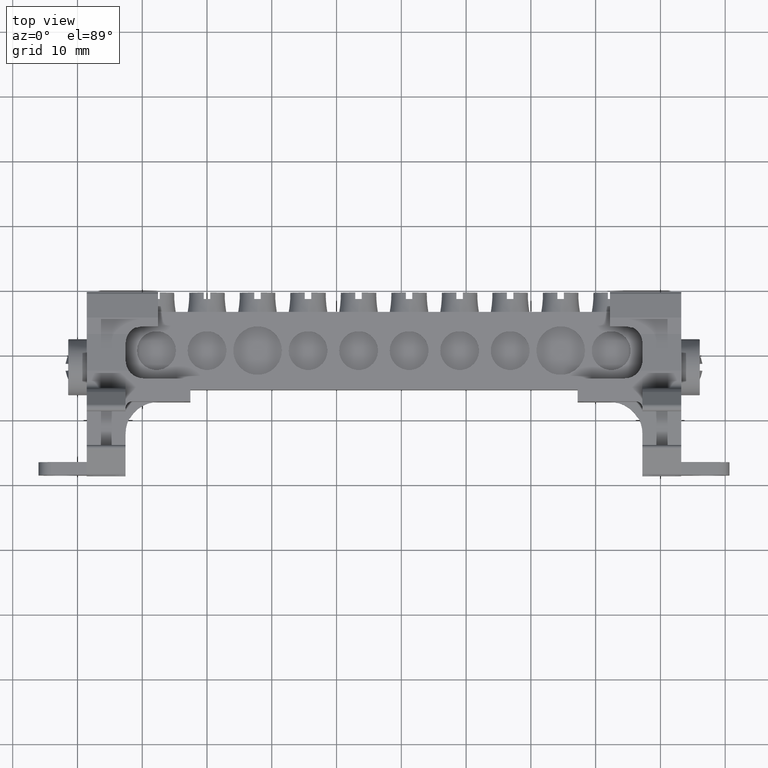
[diagram: clean part render]
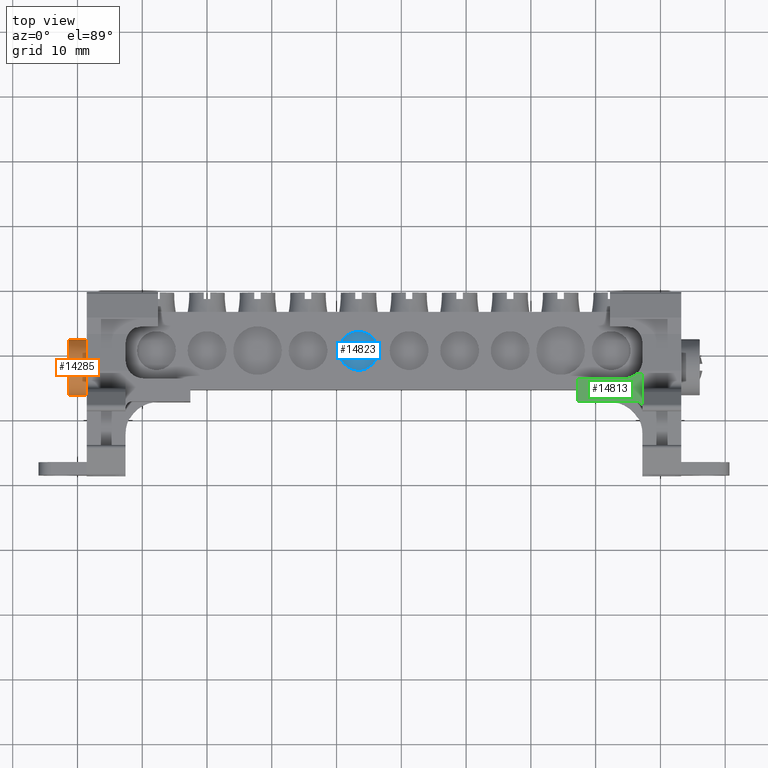
[diagram: same view with three faces highlighted in distinct colors, each labeled with its STEP entity id]
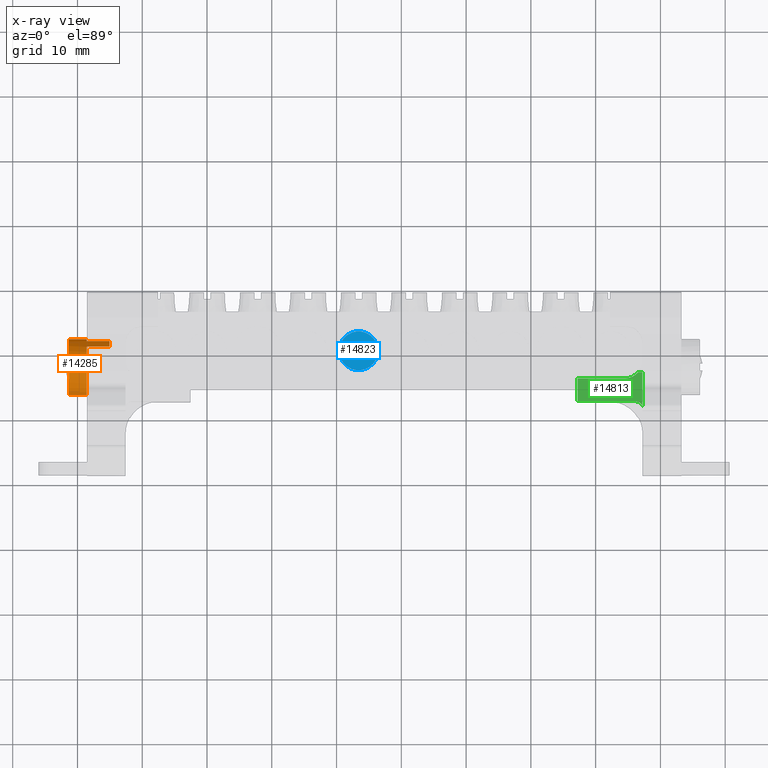
[diagram: x-ray of the same camera — body ghosted, the three highlighted faces saturated]
A machine part, top view with three faces highlighted in distinct colors.
The next image is the same camera in x-ray (body ghosted, the three faces saturated) — at least one of them is partly hidden behind the body in this view.
Their STEP definitions:

[orange] entity #14285 — the highlighted cylindrical surface (edge-blend (fillet) strip) has radius 4.325 mm, axis along (1, 0, 0).
#8 = EDGE_CURVE ( 'NONE', #11705, #11746, #16501, .T. ) ;
#31 = EDGE_CURVE ( 'NONE', #11764, #11808, #21136, .T. ) ;
#45 = EDGE_CURVE ( 'NONE', #11773, #11745, #21193, .T. ) ;
#47 = EDGE_CURVE ( 'NONE', #11764, #11745, #16521, .T. ) ;
#65 = EDGE_CURVE ( 'NONE', #11780, #11746, #21290, .T. ) ;
#80 = EDGE_CURVE ( 'NONE', #11679, #11773, #16612, .T. ) ;
#83 = EDGE_CURVE ( 'NONE', #11679, #11705, #21307, .T. ) ;
#96 = EDGE_CURVE ( 'NONE', #11808, #11780, #16673, .T. ) ;
#816 = AXIS2_PLACEMENT_3D ( 'NONE', #12280, #12282, #12239 ) ;
#4032 = ORIENTED_EDGE ( 'NONE', *, *, #80, .T. ) ;
#4047 = ORIENTED_EDGE ( 'NONE', *, *, #45, .T. ) ;
#4069 = ORIENTED_EDGE ( 'NONE', *, *, #47, .F. ) ;
#4078 = ORIENTED_EDGE ( 'NONE', *, *, #65, .T. ) ;
#4084 = ORIENTED_EDGE ( 'NONE', *, *, #31, .T. ) ;
#4095 = ORIENTED_EDGE ( 'NONE', *, *, #83, .F. ) ;
#4104 = ORIENTED_EDGE ( 'NONE', *, *, #8, .F. ) ;
#4128 = ORIENTED_EDGE ( 'NONE', *, *, #96, .T. ) ;
#4460 = EDGE_LOOP ( 'NONE', ( #4032, #4047, #4069, #4084, #4128, #4078, #4104, #4095 ) ) ;
#11679 = VERTEX_POINT ( 'NONE', #13907 ) ;
#11705 = VERTEX_POINT ( 'NONE', #13980 ) ;
#11745 = VERTEX_POINT ( 'NONE', #14025 ) ;
#11746 = VERTEX_POINT ( 'NONE', #14031 ) ;
#11764 = VERTEX_POINT ( 'NONE', #14022 ) ;
#11773 = VERTEX_POINT ( 'NONE', #14066 ) ;
#11780 = VERTEX_POINT ( 'NONE', #14072 ) ;
#11808 = VERTEX_POINT ( 'NONE', #14100 ) ;
#12239 = DIRECTION ( 'NONE',  ( -9.626211196171717600E-015, 1.000000000000000000, 0.0000000000000000000 ) ) ;
#12241 = FACE_OUTER_BOUND ( 'NONE', #4460, .T. ) ;
#12279 = CYLINDRICAL_SURFACE ( 'NONE', #816, 4.325000000000072100 ) ;
#12280 = CARTESIAN_POINT ( 'NONE',  ( -118.5753964936863000, -41.96391012922102000, 96.00723811290689000 ) ) ;
#12282 = DIRECTION ( 'NONE',  ( 1.000000000000000000, 1.122594556886344000E-014, 2.537798099621990400E-015 ) ) ;
#13907 = CARTESIAN_POINT ( 'NONE',  ( -121.3253964936863300, -37.63891012922099600, 96.00723811290689000 ) ) ;
#13980 = CARTESIAN_POINT ( 'NONE',  ( -118.5753964936863300, -37.63891012922095300, 96.00723811290689000 ) ) ;
#14022 = CARTESIAN_POINT ( 'NONE',  ( -118.5753964936863100, -38.84917704446240100, 99.00791517162390700 ) ) ;
#14025 = CARTESIAN_POINT ( 'NONE',  ( -118.5753964936862300, -46.28891012922109400, 96.00723811290689000 ) ) ;
#14031 = CARTESIAN_POINT ( 'NONE',  ( -118.5753964936863400, -37.94242244712594900, 97.59886050516097100 ) ) ;
#14066 = CARTESIAN_POINT ( 'NONE',  ( -121.3253964936862400, -46.28891012922114400, 96.00723811290689000 ) ) ;
#14072 = CARTESIAN_POINT ( 'NONE',  ( -115.0453964936864500, -37.94242244712591400, 97.59886050516098500 ) ) ;
#14100 = CARTESIAN_POINT ( 'NONE',  ( -115.0453964936864500, -38.84917682750656100, 99.00791494642160700 ) ) ;
#14285 = ADVANCED_FACE ( 'NONE', ( #12241 ), #12279, .T. ) ;
#16501 = CIRCLE ( 'NONE', #16510, 4.325000000000072100 ) ;
#16510 = AXIS2_PLACEMENT_3D ( 'NONE', #21049, #21062, #21064 ) ;
#16518 = VECTOR ( 'NONE', #21186, 1000.000000000000000 ) ;
#16521 = CIRCLE ( 'NONE', #16526, 4.325000000000072100 ) ;
#16526 = AXIS2_PLACEMENT_3D ( 'NONE', #21155, #21179, #21180 ) ;
#16547 = VECTOR ( 'NONE', #21120, 1000.000000000000000 ) ;
#16571 = VECTOR ( 'NONE', #21277, 1000.000000000000000 ) ;
#16587 = AXIS2_PLACEMENT_3D ( 'NONE', #21328, #21303, #21325 ) ;
#16598 = VECTOR ( 'NONE', #21315, 1000.000000000000000 ) ;
#16612 = CIRCLE ( 'NONE', #16587, 4.325000000000072100 ) ;
#16626 = AXIS2_PLACEMENT_3D ( 'NONE', #21365, #21338, #21354 ) ;
#16673 = CIRCLE ( 'NONE', #16626, 4.325000000000072100 ) ;
#21049 = CARTESIAN_POINT ( 'NONE',  ( -118.5753964936862800, -41.96391012922102000, 96.00723811290689000 ) ) ;
#21062 = DIRECTION ( 'NONE',  ( 1.000000000000000000, 1.122594556886344000E-014, 2.537798099621990400E-015 ) ) ;
#21064 = DIRECTION ( 'NONE',  ( -9.626211196171717600E-015, 1.000000000000000000, 0.0000000000000000000 ) ) ;
#21112 = CARTESIAN_POINT ( 'NONE',  ( -118.5753964936863400, -38.84917692816329500, 99.00791505090427300 ) ) ;
#21120 = DIRECTION ( 'NONE',  ( 1.000000000000000000, 1.122594556886344000E-014, 2.537798099621990400E-015 ) ) ;
#21136 = LINE ( 'NONE', #21112, #16547 ) ;
#21155 = CARTESIAN_POINT ( 'NONE',  ( -118.5753964936862700, -41.96391012922102000, 96.00723811290689000 ) ) ;
#21178 = CARTESIAN_POINT ( 'NONE',  ( -118.5753964936862600, -46.28891012922109400, 96.00723811290689000 ) ) ;
#21179 = DIRECTION ( 'NONE',  ( 1.000000000000000000, 1.122594556886344000E-014, 2.537798099621990400E-015 ) ) ;
#21180 = DIRECTION ( 'NONE',  ( -9.626211196171717600E-015, 1.000000000000000000, 0.0000000000000000000 ) ) ;
#21186 = DIRECTION ( 'NONE',  ( 1.000000000000000000, 1.122594556886344000E-014, 2.537798099621990400E-015 ) ) ;
#21193 = LINE ( 'NONE', #21178, #16518 ) ;
#21277 = DIRECTION ( 'NONE',  ( -1.000000000000000000, -1.123605221868002000E-014, -2.577113812942070400E-015 ) ) ;
#21282 = CARTESIAN_POINT ( 'NONE',  ( -156.0043982433000700, -37.94242244489806400, 97.59886050479775600 ) ) ;
#21290 = LINE ( 'NONE', #21282, #16571 ) ;
#21301 = CARTESIAN_POINT ( 'NONE',  ( -118.5753964936863400, -37.63891012922095300, 96.00723811290689000 ) ) ;
#21303 = DIRECTION ( 'NONE',  ( 1.000000000000000000, 1.122594556886344000E-014, 2.537798099621990400E-015 ) ) ;
#21307 = LINE ( 'NONE', #21301, #16598 ) ;
#21315 = DIRECTION ( 'NONE',  ( 1.000000000000000000, 1.122594556886344000E-014, 2.537798099621990400E-015 ) ) ;
#21325 = DIRECTION ( 'NONE',  ( -9.626211196171717600E-015, 1.000000000000000000, 0.0000000000000000000 ) ) ;
#21328 = CARTESIAN_POINT ( 'NONE',  ( -121.3253964936862800, -41.96391012922104800, 96.00723811290687600 ) ) ;
#21338 = DIRECTION ( 'NONE',  ( -1.000000000000000000, -1.122594556886344000E-014, -2.537798099621990400E-015 ) ) ;
#21354 = DIRECTION ( 'NONE',  ( -9.626211196171717600E-015, 1.000000000000000000, -1.604368532695286200E-014 ) ) ;
#21365 = CARTESIAN_POINT ( 'NONE',  ( -115.0453964936864100, -41.96391012922098400, 96.00723811290690400 ) ) ;

[blue] entity #14823 — the highlighted planar face has unit normal (0, 0, -1).
#254 = AXIS2_PLACEMENT_3D ( 'NONE', #1102, #1125, #1120 ) ;
#294 = CIRCLE ( 'NONE', #254, 3.000000000000002700 ) ;
#740 = AXIS2_PLACEMENT_3D ( 'NONE', #16162, #16119, #16157 ) ;
#1102 = CARTESIAN_POINT ( 'NONE',  ( -76.60539649368639900, -39.46391012921964900, 98.75723811290720300 ) ) ;
#1120 = DIRECTION ( 'NONE',  ( -1.000000000000000000, 0.0000000000000000000, 0.0000000000000000000 ) ) ;
#1125 = DIRECTION ( 'NONE',  ( 0.0000000000000000000, 0.0000000000000000000, 1.000000000000000000 ) ) ;
#1686 = CARTESIAN_POINT ( 'NONE',  ( -79.60539649368639900, -39.46391012921964900, 98.75723811290720300 ) ) ;
#1736 = EDGE_CURVE ( 'NONE', #11577, #11532, #16967, .T. ) ;
#11532 = VERTEX_POINT ( 'NONE', #1686 ) ;
#11577 = VERTEX_POINT ( 'NONE', #21985 ) ;
#11892 = ORIENTED_EDGE ( 'NONE', *, *, #14395, .T. ) ;
#11918 = ORIENTED_EDGE ( 'NONE', *, *, #1736, .T. ) ;
#14395 = EDGE_CURVE ( 'NONE', #11532, #11577, #294, .T. ) ;
#14823 = ADVANCED_FACE ( 'NONE', ( #16138 ), #16144, .F. ) ;
#16119 = DIRECTION ( 'NONE',  ( 0.0000000000000000000, 0.0000000000000000000, -1.000000000000000000 ) ) ;
#16138 = FACE_OUTER_BOUND ( 'NONE', #19941, .T. ) ;
#16144 = PLANE ( 'NONE',  #740 ) ;
#16157 = DIRECTION ( 'NONE',  ( -1.000000000000000000, 0.0000000000000000000, -0.0000000000000000000 ) ) ;
#16162 = CARTESIAN_POINT ( 'NONE',  ( -30.80539649368639800, -44.96391012921961300, 98.75723811290720300 ) ) ;
#16939 = AXIS2_PLACEMENT_3D ( 'NONE', #18158, #18178, #18144 ) ;
#16967 = CIRCLE ( 'NONE', #16939, 3.000000000000002700 ) ;
#18144 = DIRECTION ( 'NONE',  ( -1.000000000000000000, 0.0000000000000000000, 0.0000000000000000000 ) ) ;
#18158 = CARTESIAN_POINT ( 'NONE',  ( -76.60539649368639900, -39.46391012921964900, 98.75723811290720300 ) ) ;
#18178 = DIRECTION ( 'NONE',  ( 0.0000000000000000000, 0.0000000000000000000, 1.000000000000000000 ) ) ;
#19941 = EDGE_LOOP ( 'NONE', ( #11892, #11918 ) ) ;
#21985 = CARTESIAN_POINT ( 'NONE',  ( -73.60539649368639900, -39.46391012921964900, 98.75723811290720300 ) ) ;

[green] entity #14813 — the highlighted planar face has unit normal (-0, 0, 1).
#684 = AXIS2_PLACEMENT_3D ( 'NONE', #16111, #16089, #16077 ) ;
#1578 = EDGE_CURVE ( 'NONE', #7927, #8332, #16827, .T. ) ;
#2120 = VECTOR ( 'NONE', #10523, 1000.000000000000000 ) ;
#2145 = VECTOR ( 'NONE', #10821, 1000.000000000000000 ) ;
#2350 = VECTOR ( 'NONE', #7178, 1000.000000000000000 ) ;
#2399 = VECTOR ( 'NONE', #10914, 1000.000000000000000 ) ;
#2525 = EDGE_CURVE ( 'NONE', #7654, #7852, #18339, .T. ) ;
#2546 = EDGE_CURVE ( 'NONE', #8326, #8374, #17038, .T. ) ;
#2563 = EDGE_CURVE ( 'NONE', #8374, #7654, #18495, .T. ) ;
#5209 = CARTESIAN_POINT ( 'NONE',  ( -32.77539649368633000, -44.59739654058895300, 101.3154422156384300 ) ) ;
#5678 = CARTESIAN_POINT ( 'NONE',  ( -32.77539649368623700, -42.80570166464819000, 101.3154422156381600 ) ) ;
#5715 = CARTESIAN_POINT ( 'NONE',  ( -33.43091737459784000, -42.80570166464818300, 101.3154422156380400 ) ) ;
#6605 = CARTESIAN_POINT ( 'NONE',  ( -33.78339649368590600, -47.31558989761801100, 101.3154422156386000 ) ) ;
#6610 = CARTESIAN_POINT ( 'NONE',  ( -35.54739649368593700, -43.78758989761692500, 101.3154422156381700 ) ) ;
#6711 = CARTESIAN_POINT ( 'NONE',  ( -32.77539649368613800, -48.32358989761701900, 101.3154422156388700 ) ) ;
#7156 = CARTESIAN_POINT ( 'NONE',  ( -26.77539649368630500, -42.80570166464811900, 101.3154422156381000 ) ) ;
#7178 = DIRECTION ( 'NONE',  ( -1.000000000000000000, -1.109077728002170700E-014, -1.955555613115929000E-015 ) ) ;
#7191 = LINE ( 'NONE', #7156, #2350 ) ;
#7654 = VERTEX_POINT ( 'NONE', #5209 ) ;
#7852 = VERTEX_POINT ( 'NONE', #5678 ) ;
#7927 = VERTEX_POINT ( 'NONE', #5715 ) ;
#8326 = VERTEX_POINT ( 'NONE', #6605 ) ;
#8332 = VERTEX_POINT ( 'NONE', #6610 ) ;
#8374 = VERTEX_POINT ( 'NONE', #6711 ) ;
#8444 = VERTEX_POINT ( 'NONE', #17657 ) ;
#8464 = VERTEX_POINT ( 'NONE', #17206 ) ;
#9229 = EDGE_CURVE ( 'NONE', #7852, #7927, #7191, .T. ) ;
#10519 = LINE ( 'NONE', #10597, #2120 ) ;
#10523 = DIRECTION ( 'NONE',  ( 1.000000000000000000, 3.254029360473868200E-028, 2.352285033426070200E-015 ) ) ;
#10597 = CARTESIAN_POINT ( 'NONE',  ( -110.4014764936858100, -47.31558989761754200, 101.3154422156386800 ) ) ;
#10621 = LINE ( 'NONE', #10624, #2145 ) ;
#10624 = CARTESIAN_POINT ( 'NONE',  ( -28.64490276648500000, -43.78758989761684700, 101.3154422156382000 ) ) ;
#10821 = DIRECTION ( 'NONE',  ( -1.000000000000000000, -1.100161628464460100E-014, 1.522468295627201200E-027 ) ) ;
#10914 = DIRECTION ( 'NONE',  ( -1.100161628464490100E-014, 1.000000000000000000, -0.0000000000000000000 ) ) ;
#11002 = LINE ( 'NONE', #11014, #2399 ) ;
#11014 = CARTESIAN_POINT ( 'NONE',  ( -42.77539649368590300, -45.09798989761740300, 101.3154422156385100 ) ) ;
#12057 = EDGE_CURVE ( 'NONE', #8444, #8326, #10519, .T. ) ;
#12114 = EDGE_CURVE ( 'NONE', #8332, #8464, #10621, .T. ) ;
#12170 = EDGE_CURVE ( 'NONE', #8444, #8464, #11002, .T. ) ;
#14813 = ADVANCED_FACE ( 'NONE', ( #16110 ), #16088, .T. ) ;
#16077 = DIRECTION ( 'NONE',  ( 0.0000000000000000000, -1.000000000000000000, 1.383348239789809800E-013 ) ) ;
#16088 = PLANE ( 'NONE',  #684 ) ;
#16089 = DIRECTION ( 'NONE',  ( -2.352285033426070200E-015, 1.383348239789809800E-013, 1.000000000000000000 ) ) ;
#16110 = FACE_OUTER_BOUND ( 'NONE', #19926, .T. ) ;
#16111 = CARTESIAN_POINT ( 'NONE',  ( -110.4014764936858100, -49.67006088807031700, 101.3154422156390000 ) ) ;
#16827 = CIRCLE ( 'NONE', #16846, 2.771999999999996700 ) ;
#16846 = AXIS2_PLACEMENT_3D ( 'NONE', #17842, #17776, #17784 ) ;
#17025 = AXIS2_PLACEMENT_3D ( 'NONE', #18424, #18410, #18441 ) ;
#17035 = VECTOR ( 'NONE', #18317, 1000.000000000000000 ) ;
#17038 = CIRCLE ( 'NONE', #17025, 1.008000000000002000 ) ;
#17090 = VECTOR ( 'NONE', #18458, 1000.000000000000000 ) ;
#17206 = CARTESIAN_POINT ( 'NONE',  ( -42.77539649368593900, -43.78758989761700300, 101.3154422156382000 ) ) ;
#17657 = CARTESIAN_POINT ( 'NONE',  ( -42.77539649368591100, -47.31558989761774800, 101.3154422156386800 ) ) ;
#17776 = DIRECTION ( 'NONE',  ( 2.352285033426075300E-015, -1.383858749693143900E-013, -1.000000000000000000 ) ) ;
#17784 = DIRECTION ( 'NONE',  ( 0.0000000000000000000, 1.000000000000000000, -1.401796748264088300E-013 ) ) ;
#17842 = CARTESIAN_POINT ( 'NONE',  ( -35.54739649368600100, -41.01558989761692700, 101.3154422156377400 ) ) ;
#18317 = DIRECTION ( 'NONE',  ( -0.0000000000000000000, 1.000000000000000000, -1.383348239789809800E-013 ) ) ;
#18339 = LINE ( 'NONE', #18344, #17035 ) ;
#18344 = CARTESIAN_POINT ( 'NONE',  ( -32.77539649368633000, -49.67006088807031700, 101.3154422156391800 ) ) ;
#18410 = DIRECTION ( 'NONE',  ( 2.352285033426080400E-015, -1.387778780781406000E-013, -1.000000000000000000 ) ) ;
#18424 = CARTESIAN_POINT ( 'NONE',  ( -33.78339649368589900, -48.32358989761701900, 101.3154422156387400 ) ) ;
#18441 = DIRECTION ( 'NONE',  ( 0.0000000000000000000, -1.000000000000000000, 1.376764663473653600E-013 ) ) ;
#18458 = DIRECTION ( 'NONE',  ( -0.0000000000000000000, 1.000000000000000000, -1.383348239789809800E-013 ) ) ;
#18464 = CARTESIAN_POINT ( 'NONE',  ( -32.77539649368610200, -49.67006088807031700, 101.3154422156391800 ) ) ;
#18495 = LINE ( 'NONE', #18464, #17090 ) ;
#19926 = EDGE_LOOP ( 'NONE', ( #20586, #20592, #20632, #20572, #20635, #20636, #20647, #20673 ) ) ;
#20572 = ORIENTED_EDGE ( 'NONE', *, *, #1578, .T. ) ;
#20586 = ORIENTED_EDGE ( 'NONE', *, *, #2563, .T. ) ;
#20592 = ORIENTED_EDGE ( 'NONE', *, *, #2525, .T. ) ;
#20632 = ORIENTED_EDGE ( 'NONE', *, *, #9229, .T. ) ;
#20635 = ORIENTED_EDGE ( 'NONE', *, *, #12114, .T. ) ;
#20636 = ORIENTED_EDGE ( 'NONE', *, *, #12170, .F. ) ;
#20647 = ORIENTED_EDGE ( 'NONE', *, *, #12057, .T. ) ;
#20673 = ORIENTED_EDGE ( 'NONE', *, *, #2546, .T. ) ;